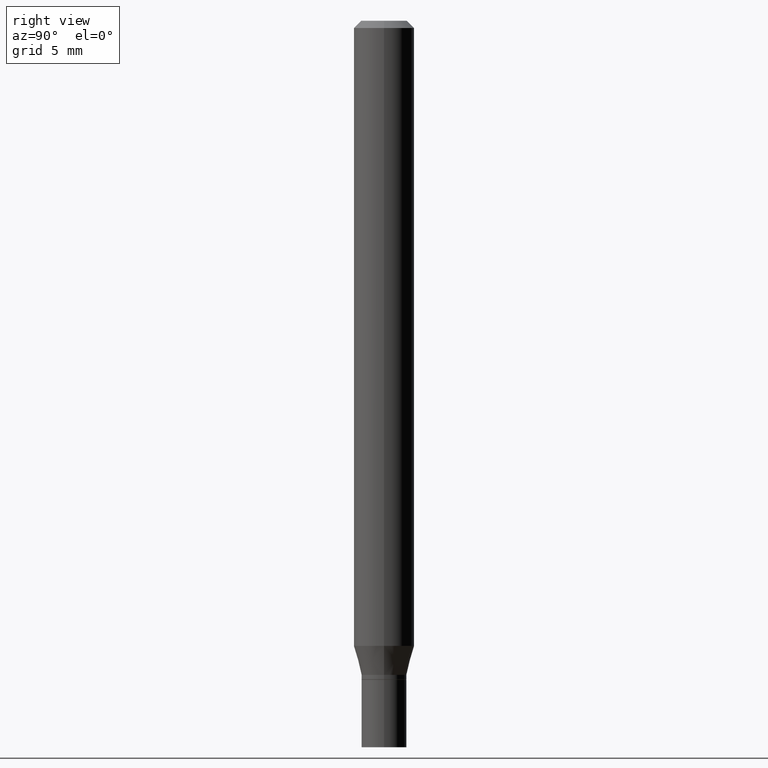
[diagram: clean part render]
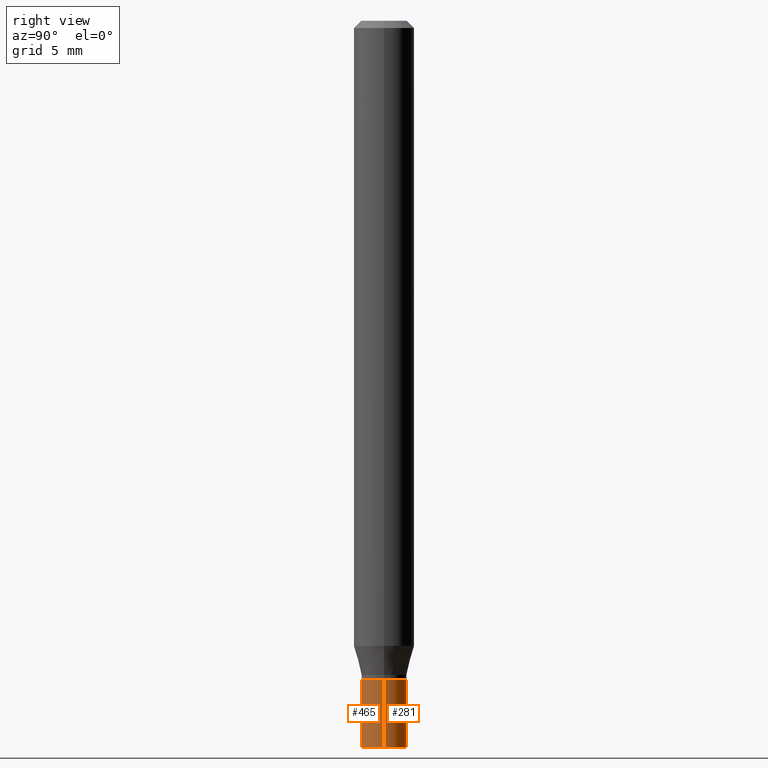
[diagram: same view with one multi-face feature highlighted, each face labeled with its STEP entity id]
A machine part, right view. The highlighted faces form ONE feature: a constant-radius fillet chain: 2 tangent blend faces with common blend radius 1.1811 mm. The faces share edges in the B-rep.
Their STEP definitions:
[1] entity #465 (Cylinder):
#1 = ORIENTED_EDGE ( 'NONE', *, *, #292, .T. ) ;
#20 = LINE ( 'NONE', #146, #346 ) ;
#32 = CYLINDRICAL_SURFACE ( 'NONE', #249, 0.04649999999999999967 ) ;
#42 = ORIENTED_EDGE ( 'NONE', *, *, #285, .F. ) ;
#55 = DIRECTION ( 'NONE',  ( 1.000000000000000000, -6.982962677686260400E-15, 0.000000000000000000 ) ) ;
#85 = DIRECTION ( 'NONE',  ( 1.000000000000000000, -6.982962677686260400E-15, 0.000000000000000000 ) ) ;
#99 = DIRECTION ( 'NONE',  ( -2.445468806185136597E-29, 3.491481338843145583E-15, 1.000000000000000000 ) ) ;
#123 = CARTESIAN_POINT ( 'NONE',  ( 0.000000000000000000, 0.000000000000000000, 0.000000000000000000 ) ) ;
#136 = VECTOR ( 'NONE', #335, 39.37007874015748143 ) ;
#146 = CARTESIAN_POINT ( 'NONE',  ( -0.04649999999999999967, 3.304023721284465841E-16, -2.287304816968531530E-30 ) ) ;
#149 = CIRCLE ( 'NONE', #231, 0.04649999999999999967 ) ;
#167 = CARTESIAN_POINT ( 'NONE',  ( 0.04649999999999999967, -5.074868126008511245E-15, -1.360500000000000043 ) ) ;
#174 = LINE ( 'NONE', #367, #136 ) ;
#194 = CARTESIAN_POINT ( 'NONE',  ( -0.04649999999999999967, -4.663288812751962872E-15, -1.500000000000000222 ) ) ;
#199 = CARTESIAN_POINT ( 'NONE',  ( 0.04649999999999999967, -5.561929772777129673E-15, -1.500000000000000222 ) ) ;
#231 = AXIS2_PLACEMENT_3D ( 'NONE', #460, #381, #55 ) ;
#244 = AXIS2_PLACEMENT_3D ( 'NONE', #451, #312, #85 ) ;
#249 = AXIS2_PLACEMENT_3D ( 'NONE', #123, #99, #272 ) ;
#251 = ORIENTED_EDGE ( 'NONE', *, *, #374, .T. ) ;
#261 = ORIENTED_EDGE ( 'NONE', *, *, #313, .F. ) ;
#272 = DIRECTION ( 'NONE',  ( 1.000000000000000000, -6.982962677686267499E-15, 4.876176775795936353E-29 ) ) ;
#285 = EDGE_CURVE ( 'NONE', #298, #376, #20, .T. ) ;
#292 = EDGE_CURVE ( 'NONE', #298, #299, #453, .T. ) ;
#297 = EDGE_LOOP ( 'NONE', ( #42, #1, #251, #261 ) ) ;
#298 = VERTEX_POINT ( 'NONE', #194 ) ;
#299 = VERTEX_POINT ( 'NONE', #199 ) ;
#300 = DIRECTION ( 'NONE',  ( -2.445468806185136877E-29, 3.491481338843145188E-15, 1.000000000000000000 ) ) ;
#312 = DIRECTION ( 'NONE',  ( -2.445468806185136597E-29, 3.491481338843145583E-15, 1.000000000000000000 ) ) ;
#313 = EDGE_CURVE ( 'NONE', #376, #340, #149, .T. ) ;
#335 = DIRECTION ( 'NONE',  ( -2.445468806185136877E-29, 3.491481338843145188E-15, 1.000000000000000000 ) ) ;
#340 = VERTEX_POINT ( 'NONE', #167 ) ;
#346 = VECTOR ( 'NONE', #300, 39.37007874015748143 ) ;
#347 = FACE_OUTER_BOUND ( 'NONE', #297, .T. ) ;
#367 = CARTESIAN_POINT ( 'NONE',  ( 0.04649999999999999967, -3.247077645124114474E-16, 2.267422200745110326E-30 ) ) ;
#374 = EDGE_CURVE ( 'NONE', #299, #340, #174, .T. ) ;
#376 = VERTEX_POINT ( 'NONE', #382 ) ;
#381 = DIRECTION ( 'NONE',  ( -2.445468806185136597E-29, 3.491481338843145583E-15, 1.000000000000000000 ) ) ;
#382 = CARTESIAN_POINT ( 'NONE',  ( -0.04649999999999999967, -4.663288812751962872E-15, -1.360500000000000043 ) ) ;
#451 = CARTESIAN_POINT ( 'NONE',  ( 3.668203209277704895E-29, -5.237222008264718177E-15, -1.500000000000000222 ) ) ;
#453 = CIRCLE ( 'NONE', #244, 0.04649999999999999967 ) ;
#460 = CARTESIAN_POINT ( 'NONE',  ( 3.327060310814878865E-29, -4.750160361496100537E-15, -1.360500000000000043 ) ) ;
#465 = ADVANCED_FACE ( 'NONE', ( #347 ), #32, .T. ) ;
[2] entity #281 (Cylinder):
#8 = DIRECTION ( 'NONE',  ( 1.000000000000000000, -6.982962677686260400E-15, 0.000000000000000000 ) ) ;
#20 = LINE ( 'NONE', #146, #346 ) ;
#57 = DIRECTION ( 'NONE',  ( 1.000000000000000000, -6.982962677686267499E-15, 4.876176775795936353E-29 ) ) ;
#60 = FACE_OUTER_BOUND ( 'NONE', #372, .T. ) ;
#107 = ORIENTED_EDGE ( 'NONE', *, *, #374, .F. ) ;
#111 = DIRECTION ( 'NONE',  ( -2.445468806185136597E-29, 3.491481338843145583E-15, 1.000000000000000000 ) ) ;
#131 = DIRECTION ( 'NONE',  ( -2.445468806185136597E-29, 3.491481338843145583E-15, 1.000000000000000000 ) ) ;
#132 = CIRCLE ( 'NONE', #255, 0.04649999999999999967 ) ;
#136 = VECTOR ( 'NONE', #335, 39.37007874015748143 ) ;
#146 = CARTESIAN_POINT ( 'NONE',  ( -0.04649999999999999967, 3.304023721284465841E-16, -2.287304816968531530E-30 ) ) ;
#162 = ORIENTED_EDGE ( 'NONE', *, *, #383, .F. ) ;
#167 = CARTESIAN_POINT ( 'NONE',  ( 0.04649999999999999967, -5.074868126008511245E-15, -1.360500000000000043 ) ) ;
#170 = ORIENTED_EDGE ( 'NONE', *, *, #200, .T. ) ;
#174 = LINE ( 'NONE', #367, #136 ) ;
#194 = CARTESIAN_POINT ( 'NONE',  ( -0.04649999999999999967, -4.663288812751962872E-15, -1.500000000000000222 ) ) ;
#199 = CARTESIAN_POINT ( 'NONE',  ( 0.04649999999999999967, -5.561929772777129673E-15, -1.500000000000000222 ) ) ;
#200 = EDGE_CURVE ( 'NONE', #299, #298, #132, .T. ) ;
#205 = CIRCLE ( 'NONE', #425, 0.04649999999999999967 ) ;
#240 = CYLINDRICAL_SURFACE ( 'NONE', #438, 0.04649999999999999967 ) ;
#255 = AXIS2_PLACEMENT_3D ( 'NONE', #357, #131, #329 ) ;
#281 = ADVANCED_FACE ( 'NONE', ( #60 ), #240, .T. ) ;
#285 = EDGE_CURVE ( 'NONE', #298, #376, #20, .T. ) ;
#298 = VERTEX_POINT ( 'NONE', #194 ) ;
#299 = VERTEX_POINT ( 'NONE', #199 ) ;
#300 = DIRECTION ( 'NONE',  ( -2.445468806185136877E-29, 3.491481338843145188E-15, 1.000000000000000000 ) ) ;
#329 = DIRECTION ( 'NONE',  ( 1.000000000000000000, -6.982962677686260400E-15, 0.000000000000000000 ) ) ;
#335 = DIRECTION ( 'NONE',  ( -2.445468806185136877E-29, 3.491481338843145188E-15, 1.000000000000000000 ) ) ;
#340 = VERTEX_POINT ( 'NONE', #167 ) ;
#346 = VECTOR ( 'NONE', #300, 39.37007874015748143 ) ;
#351 = CARTESIAN_POINT ( 'NONE',  ( 0.000000000000000000, 0.000000000000000000, 0.000000000000000000 ) ) ;
#357 = CARTESIAN_POINT ( 'NONE',  ( 3.668203209277704895E-29, -5.237222008264718177E-15, -1.500000000000000222 ) ) ;
#367 = CARTESIAN_POINT ( 'NONE',  ( 0.04649999999999999967, -3.247077645124114474E-16, 2.267422200745110326E-30 ) ) ;
#370 = CARTESIAN_POINT ( 'NONE',  ( 3.327060310814878865E-29, -4.750160361496100537E-15, -1.360500000000000043 ) ) ;
#372 = EDGE_LOOP ( 'NONE', ( #170, #411, #162, #107 ) ) ;
#374 = EDGE_CURVE ( 'NONE', #299, #340, #174, .T. ) ;
#376 = VERTEX_POINT ( 'NONE', #382 ) ;
#382 = CARTESIAN_POINT ( 'NONE',  ( -0.04649999999999999967, -4.663288812751962872E-15, -1.360500000000000043 ) ) ;
#383 = EDGE_CURVE ( 'NONE', #340, #376, #205, .T. ) ;
#411 = ORIENTED_EDGE ( 'NONE', *, *, #285, .T. ) ;
#422 = DIRECTION ( 'NONE',  ( -2.445468806185136597E-29, 3.491481338843145583E-15, 1.000000000000000000 ) ) ;
#425 = AXIS2_PLACEMENT_3D ( 'NONE', #370, #111, #8 ) ;
#438 = AXIS2_PLACEMENT_3D ( 'NONE', #351, #422, #57 ) ;